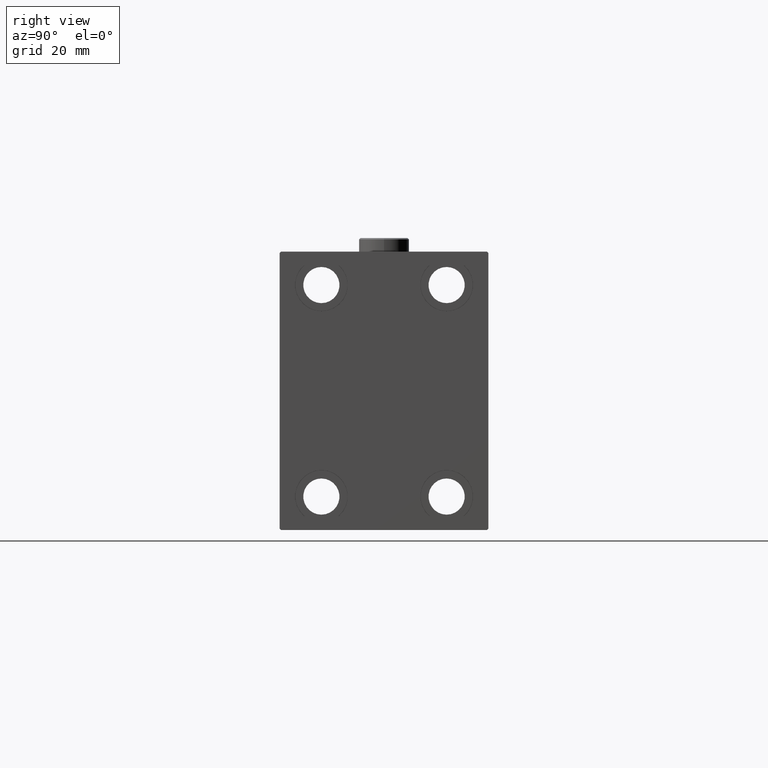
[diagram: clean part render]
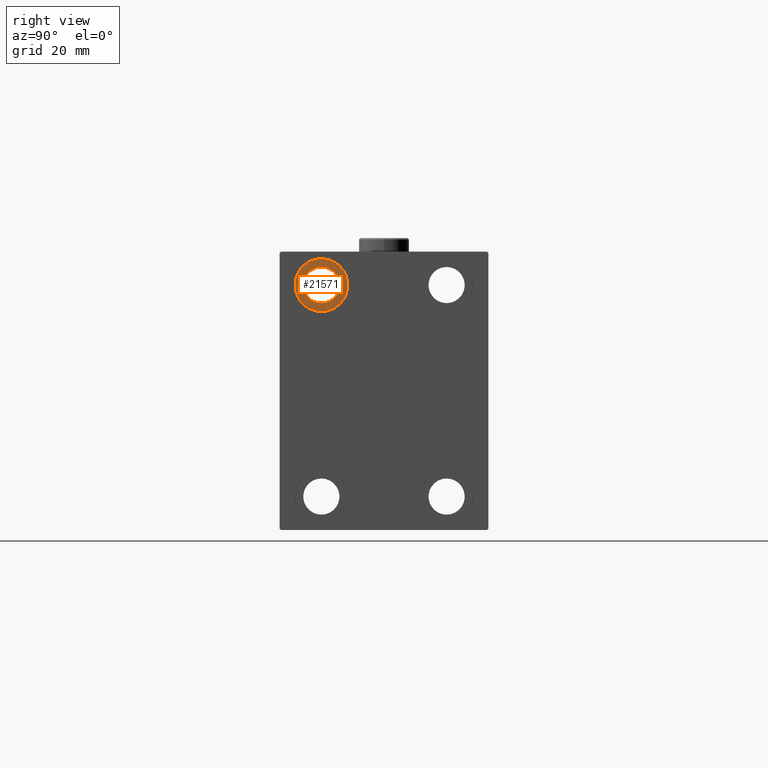
[diagram: same view with one face highlighted and labeled with its STEP entity id]
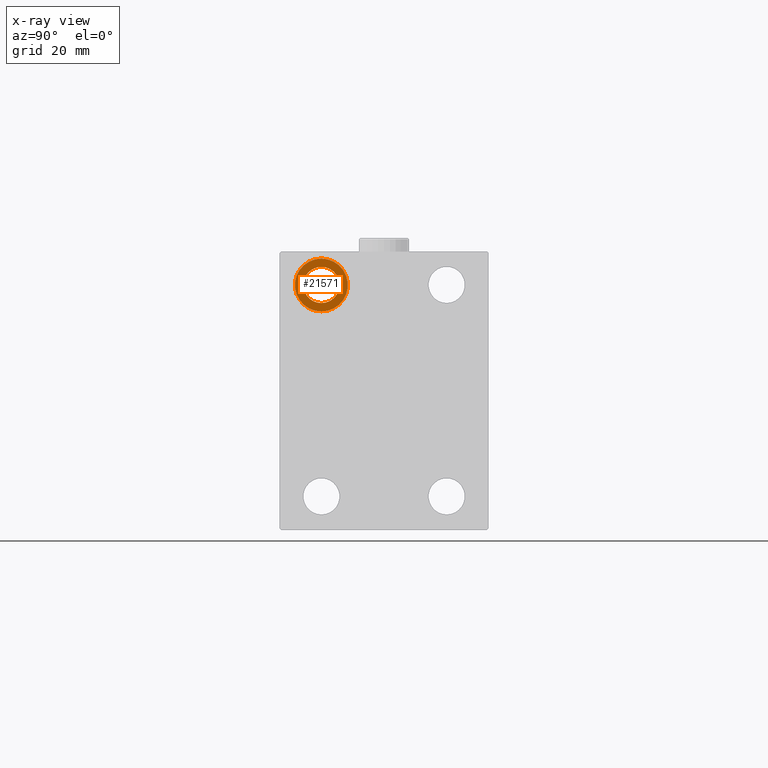
[diagram: x-ray of the same camera — body ghosted, the highlighted face saturated]
A machine part, right view. The second image highlights one B-rep face of the part: STEP entity #21571.
The next image is the same camera in x-ray: the body ghosted, the highlighted face saturated — about 0% of this face is hidden behind the body in this view.
In plain terms, the highlighted planar face has unit normal (1, 0, 0).
Its self-contained STEP definition (entity closure, byte-faithful):
#2849 = EDGE_CURVE ( 'NONE', #18973, #5909, #39474, .T. ) ;
#4335 = CARTESIAN_POINT ( 'NONE',  ( 120.0000000000000142, -22.49999999999999645, 37.99999999999999289 ) ) ;
#5691 = DIRECTION ( 'NONE',  ( 0.000000000000000000, 0.000000000000000000, 1.000000000000000000 ) ) ;
#5909 = VERTEX_POINT ( 'NONE', #24681 ) ;
#6128 = CARTESIAN_POINT ( 'NONE',  ( 120.0000000000000142, -22.49999999999999645, 28.49999999999998934 ) ) ;
#11953 = CARTESIAN_POINT ( 'NONE',  ( 120.0000000000000142, -22.49999999999999645, 44.49999999999999289 ) ) ;
#12087 = CIRCLE ( 'NONE', #20661, 6.499999999999999112 ) ;
#13116 = ORIENTED_EDGE ( 'NONE', *, *, #2849, .F. ) ;
#13654 = ORIENTED_EDGE ( 'NONE', *, *, #43314, .T. ) ;
#14029 = CARTESIAN_POINT ( 'NONE',  ( 120.0000000000000142, -22.49999999999999645, 31.49999999999999289 ) ) ;
#14115 = CARTESIAN_POINT ( 'NONE',  ( 120.0000000000000142, -22.49999999999999645, 37.99999999999999289 ) ) ;
#14178 = ORIENTED_EDGE ( 'NONE', *, *, #28475, .T. ) ;
#15566 = DIRECTION ( 'NONE',  ( 0.000000000000000000, 0.000000000000000000, -1.000000000000000000 ) ) ;
#18341 = DIRECTION ( 'NONE',  ( 0.000000000000000000, 0.000000000000000000, 1.000000000000000000 ) ) ;
#18973 = VERTEX_POINT ( 'NONE', #6128 ) ;
#19209 = DIRECTION ( 'NONE',  ( -1.000000000000000000, -0.000000000000000000, -0.000000000000000000 ) ) ;
#20313 = CARTESIAN_POINT ( 'NONE',  ( 120.0000000000000142, -22.49999999999999645, 37.99999999999999289 ) ) ;
#20321 = FACE_OUTER_BOUND ( 'NONE', #25032, .T. ) ;
#20661 = AXIS2_PLACEMENT_3D ( 'NONE', #20313, #38808, #45645 ) ;
#21151 = EDGE_LOOP ( 'NONE', ( #13654, #14178 ) ) ;
#21571 = ADVANCED_FACE ( 'NONE', ( #20321, #35162 ), #35880, .T. ) ;
#21987 = DIRECTION ( 'NONE',  ( -1.000000000000000000, -0.000000000000000000, -0.000000000000000000 ) ) ;
#23106 = AXIS2_PLACEMENT_3D ( 'NONE', #14115, #47210, #36245 ) ;
#23518 = AXIS2_PLACEMENT_3D ( 'NONE', #39058, #46373, #5691 ) ;
#23896 = AXIS2_PLACEMENT_3D ( 'NONE', #44853, #21987, #18341 ) ;
#24681 = CARTESIAN_POINT ( 'NONE',  ( 120.0000000000000142, -22.49999999999999645, 47.49999999999999289 ) ) ;
#25032 = EDGE_LOOP ( 'NONE', ( #13116, #48089 ) ) ;
#28475 = EDGE_CURVE ( 'NONE', #30151, #39665, #12087, .T. ) ;
#30151 = VERTEX_POINT ( 'NONE', #14029 ) ;
#34361 = EDGE_CURVE ( 'NONE', #5909, #18973, #35553, .T. ) ;
#35162 = FACE_BOUND ( 'NONE', #21151, .T. ) ;
#35553 = CIRCLE ( 'NONE', #23106, 9.500000000000001776 ) ;
#35880 = PLANE ( 'NONE',  #23518 ) ;
#36245 = DIRECTION ( 'NONE',  ( 0.000000000000000000, 0.000000000000000000, 1.000000000000000000 ) ) ;
#38050 = CIRCLE ( 'NONE', #42700, 6.499999999999999112 ) ;
#38808 = DIRECTION ( 'NONE',  ( -1.000000000000000000, -0.000000000000000000, -0.000000000000000000 ) ) ;
#39058 = CARTESIAN_POINT ( 'NONE',  ( 120.0000000000000142, 0.000000000000000000, 0.000000000000000000 ) ) ;
#39474 = CIRCLE ( 'NONE', #23896, 9.500000000000001776 ) ;
#39665 = VERTEX_POINT ( 'NONE', #11953 ) ;
#42700 = AXIS2_PLACEMENT_3D ( 'NONE', #4335, #19209, #15566 ) ;
#43314 = EDGE_CURVE ( 'NONE', #39665, #30151, #38050, .T. ) ;
#44853 = CARTESIAN_POINT ( 'NONE',  ( 120.0000000000000142, -22.49999999999999645, 37.99999999999999289 ) ) ;
#45645 = DIRECTION ( 'NONE',  ( 0.000000000000000000, 0.000000000000000000, -1.000000000000000000 ) ) ;
#46373 = DIRECTION ( 'NONE',  ( 1.000000000000000000, 0.000000000000000000, -0.000000000000000000 ) ) ;
#47210 = DIRECTION ( 'NONE',  ( -1.000000000000000000, -0.000000000000000000, -0.000000000000000000 ) ) ;
#48089 = ORIENTED_EDGE ( 'NONE', *, *, #34361, .F. ) ;